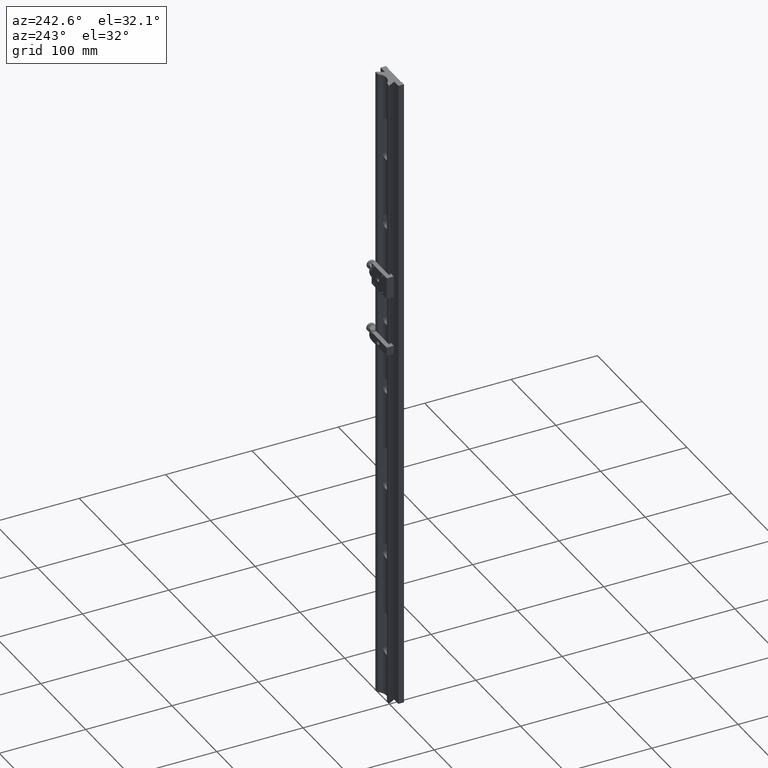
[diagram: clean part render]
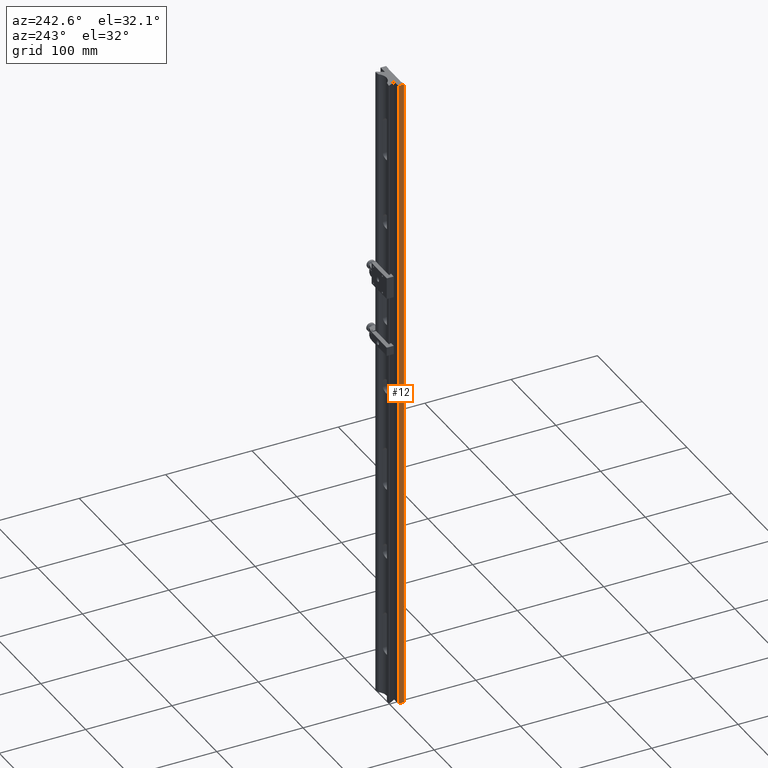
[diagram: same view with one face highlighted and labeled with its STEP entity id]
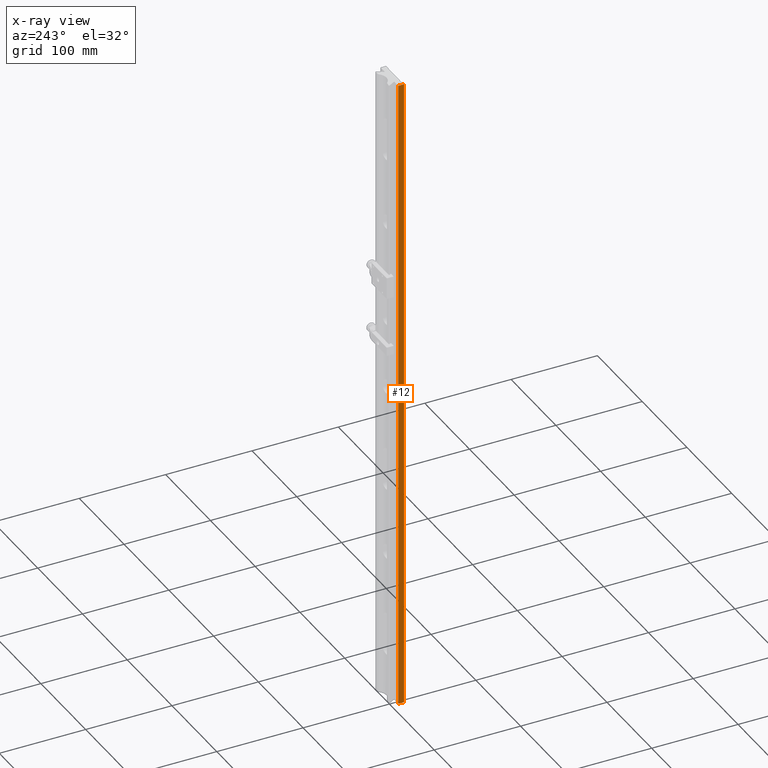
[diagram: x-ray of the same camera — body ghosted, the highlighted face saturated]
A machine part, auxiliary view. The second image highlights one B-rep face of the part: STEP entity #12.
The next image is the same camera in x-ray: the body ghosted, the highlighted face saturated — about 0% of this face is hidden behind the body in this view.
In plain terms, the highlighted planar face has unit normal (1, 0, 0).
Its self-contained STEP definition (entity closure, byte-faithful):
#12 = ADVANCED_FACE ( 'NONE', ( #6963 ), #6311, .F. ) ;
#26 = EDGE_CURVE ( 'NONE', #4492, #5170, #213, .T. ) ;
#213 = LINE ( 'NONE', #2697, #1309 ) ;
#506 = EDGE_CURVE ( 'NONE', #4492, #2230, #5322, .T. ) ;
#1256 = VECTOR ( 'NONE', #6141, 1000.000000000000000 ) ;
#1309 = VECTOR ( 'NONE', #6916, 1000.000000000000000 ) ;
#1313 = VERTEX_POINT ( 'NONE', #1415 ) ;
#1413 = CARTESIAN_POINT ( 'NONE',  ( -19.99999999999999645, 375.0000000000000000, 6.499999999999999112 ) ) ;
#1415 = CARTESIAN_POINT ( 'NONE',  ( -19.99999999999999645, -375.0000000000000000, 6.499999999999999112 ) ) ;
#1468 = CARTESIAN_POINT ( 'NONE',  ( -19.99999999999999645, 375.0000000000000000, 6.499999999999999112 ) ) ;
#1670 = CARTESIAN_POINT ( 'NONE',  ( -20.00000000000000000, 375.0000000000000000, 0.000000000000000000 ) ) ;
#1838 = LINE ( 'NONE', #3737, #1256 ) ;
#1984 = ORIENTED_EDGE ( 'NONE', *, *, #26, .T. ) ;
#2230 = VERTEX_POINT ( 'NONE', #6304 ) ;
#2447 = ORIENTED_EDGE ( 'NONE', *, *, #506, .F. ) ;
#2697 = CARTESIAN_POINT ( 'NONE',  ( -20.00000000000000000, 375.0000000000000000, 0.000000000000000000 ) ) ;
#3046 = VECTOR ( 'NONE', #5711, 1000.000000000000000 ) ;
#3235 = LINE ( 'NONE', #1468, #3046 ) ;
#3365 = AXIS2_PLACEMENT_3D ( 'NONE', #1413, #4518, #4441 ) ;
#3737 = CARTESIAN_POINT ( 'NONE',  ( -19.99999999999999645, -375.0000000000000000, 6.499999999999999112 ) ) ;
#4291 = EDGE_CURVE ( 'NONE', #2230, #1313, #3235, .T. ) ;
#4441 = DIRECTION ( 'NONE',  ( -5.337610695313253357E-16, 0.000000000000000000, -1.000000000000000000 ) ) ;
#4492 = VERTEX_POINT ( 'NONE', #1670 ) ;
#4518 = DIRECTION ( 'NONE',  ( 1.000000000000000000, 0.000000000000000000, -5.337610695313253357E-16 ) ) ;
#5078 = EDGE_CURVE ( 'NONE', #5170, #1313, #1838, .T. ) ;
#5170 = VERTEX_POINT ( 'NONE', #7513 ) ;
#5241 = CARTESIAN_POINT ( 'NONE',  ( -19.99999999999999645, 375.0000000000000000, 6.499999999999999112 ) ) ;
#5322 = LINE ( 'NONE', #5241, #5365 ) ;
#5365 = VECTOR ( 'NONE', #5895, 1000.000000000000000 ) ;
#5711 = DIRECTION ( 'NONE',  ( -0.000000000000000000, -1.000000000000000000, -0.000000000000000000 ) ) ;
#5895 = DIRECTION ( 'NONE',  ( 5.337610695313253357E-16, -0.000000000000000000, 1.000000000000000000 ) ) ;
#6141 = DIRECTION ( 'NONE',  ( 5.337610695313253357E-16, -0.000000000000000000, 1.000000000000000000 ) ) ;
#6304 = CARTESIAN_POINT ( 'NONE',  ( -19.99999999999999645, 375.0000000000000000, 6.499999999999999112 ) ) ;
#6311 = PLANE ( 'NONE',  #3365 ) ;
#6916 = DIRECTION ( 'NONE',  ( -0.000000000000000000, -1.000000000000000000, -0.000000000000000000 ) ) ;
#6929 = ORIENTED_EDGE ( 'NONE', *, *, #4291, .F. ) ;
#6963 = FACE_OUTER_BOUND ( 'NONE', #7932, .T. ) ;
#7100 = ORIENTED_EDGE ( 'NONE', *, *, #5078, .T. ) ;
#7513 = CARTESIAN_POINT ( 'NONE',  ( -20.00000000000000000, -375.0000000000000000, 0.000000000000000000 ) ) ;
#7932 = EDGE_LOOP ( 'NONE', ( #7100, #6929, #2447, #1984 ) ) ;